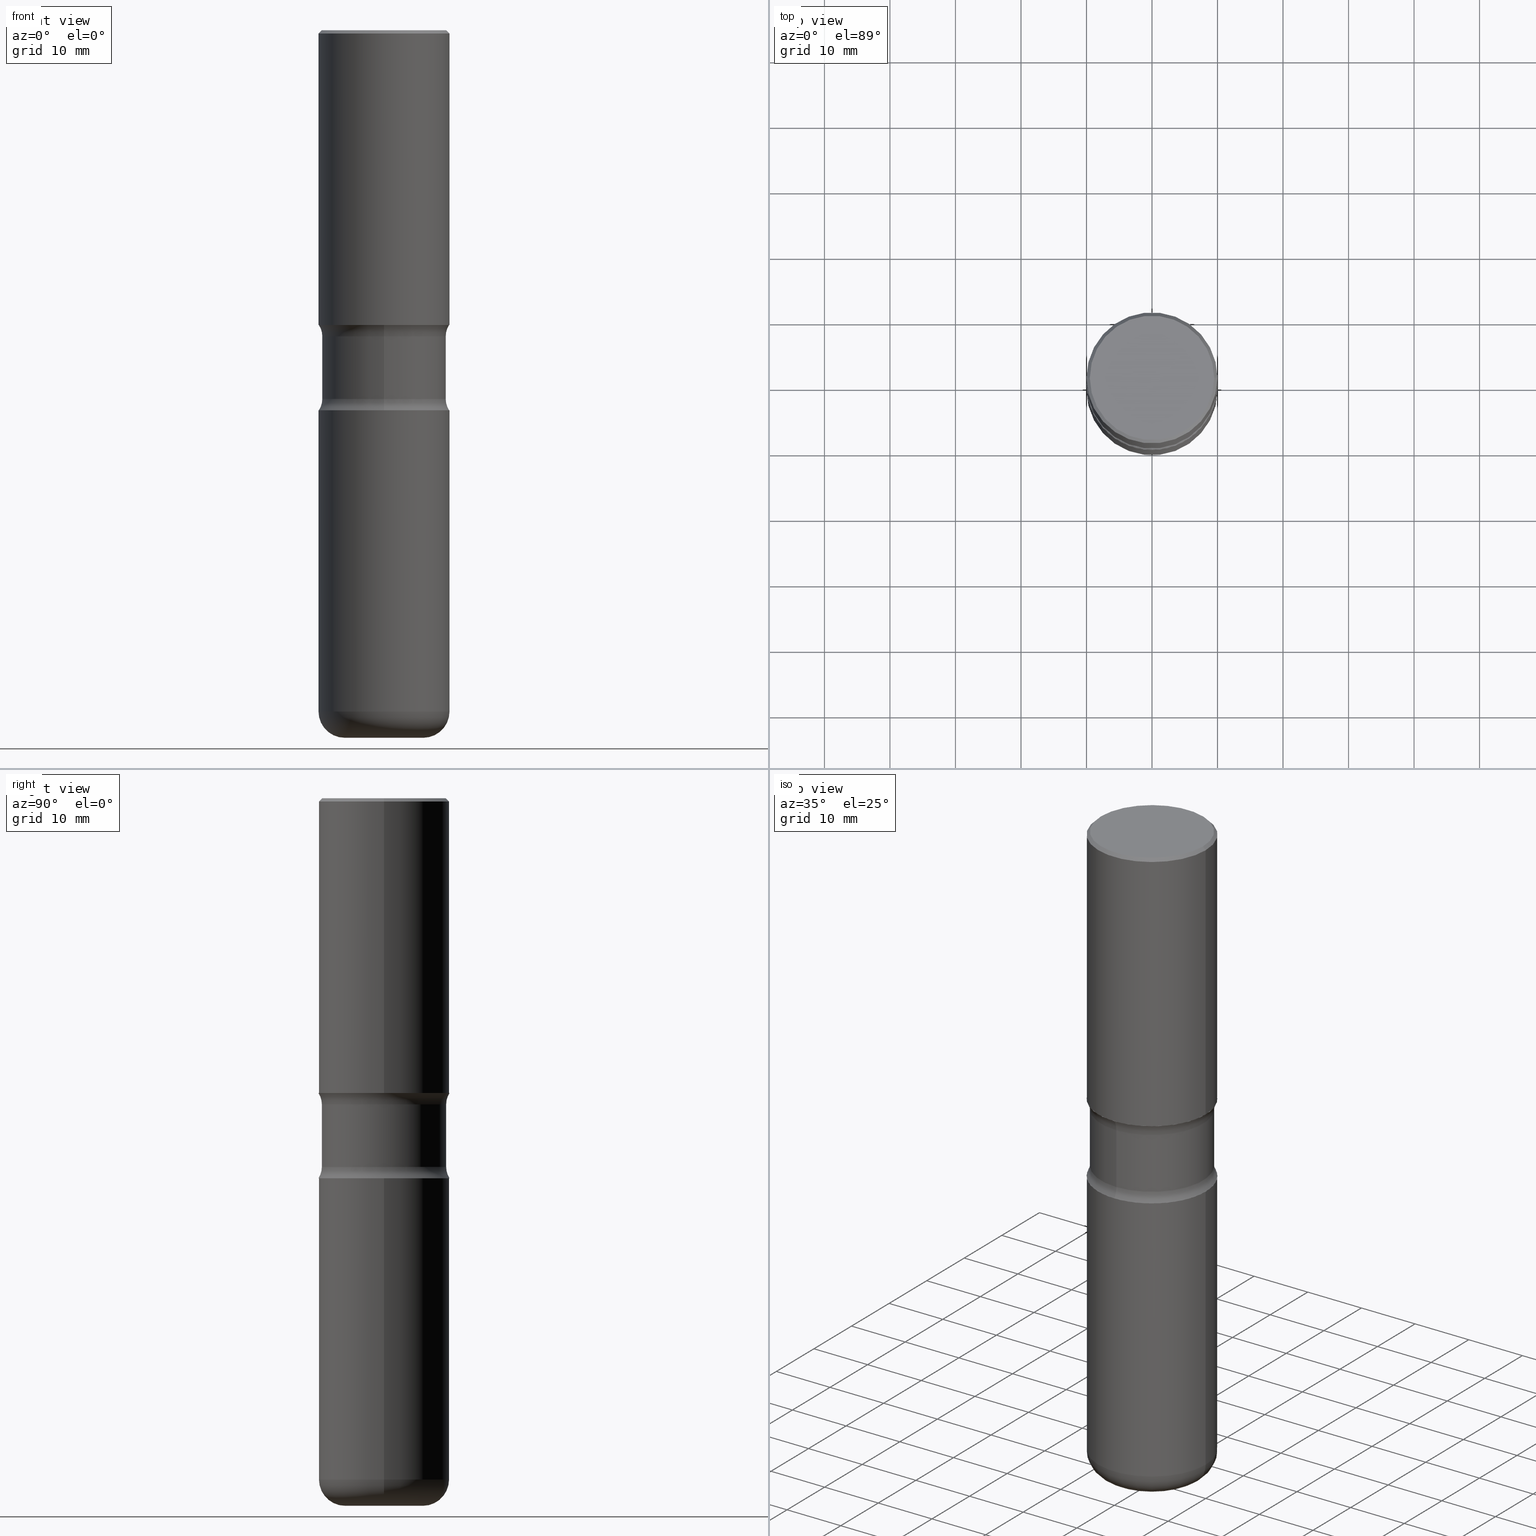
[diagram: canonical four-view strip — front | top / right | iso, engineering-drawing reading convention]
A machine part, canonical four-view strip (front | top / right | iso — engineering-drawing reading convention). The complete STEP part file that produces these views, byte-faithful:
ISO-10303-21;
HEADER;
FILE_DESCRIPTION (( 'STEP AP203' ),
    '1' );
FILE_NAME ('44758.STEP',
    '2024-03-02T02:52:09',
    ( '' ),
    ( '' ),
    'SwSTEP 2.0',
    'SolidWorks 2023',
    '' );
FILE_SCHEMA (( 'CONFIG_CONTROL_DESIGN' ));
ENDSEC;

DATA;
#1 = APPROVAL_DATE_TIME ( #304, #229 ) ;
#2 = DIRECTION ( 'NONE',  ( 2.419116809720808422E-29, -3.529218897642557802E-15, -1.000000000000000000 ) ) ;
#3 = ORIENTED_EDGE ( 'NONE', *, *, #72, .F. ) ;
#4 = VECTOR ( 'NONE', #164, 39.37007874015748143 ) ;
#5 = CIRCLE ( 'NONE', #458, 0.2357000000000006312 ) ;
#6 = APPROVAL_STATUS ( 'not_yet_approved' ) ;
#7 = AXIS2_PLACEMENT_3D ( 'NONE', #234, #360, #533 ) ;
#8 = CARTESIAN_POINT ( 'NONE',  ( -2.700978061722598399E-15, -0.3937000000000082656, -2.283499999999999641 ) ) ;
#9 = ORIENTED_EDGE ( 'NONE', *, *, #22, .T. ) ;
#10 = FACE_OUTER_BOUND ( 'NONE', #152, .T. ) ;
#11 = ORIENTED_EDGE ( 'NONE', *, *, #40, .F. ) ;
#12 = CARTESIAN_POINT ( 'NONE',  ( 5.584228018923761589E-29, -7.972797637248326287E-15, -2.283500000000000973 ) ) ;
#13 = ORIENTED_EDGE ( 'NONE', *, *, #537, .F. ) ;
#14 = CLOSED_SHELL ( 'NONE', ( #369, #184, #440, #95, #215, #281, #301, #132 ) ) ;
#15 = LINE ( 'NONE', #68, #155 ) ;
#16 = AXIS2_PLACEMENT_3D ( 'NONE', #283, #316, #116 ) ;
#17 = MANIFOLD_SOLID_BREP ( 'Body-Move/Copy2[4]', #14 ) ;
#18 = EDGE_LOOP ( 'NONE', ( #499, #364, #42, #3 ) ) ;
#19 = APPLICATION_CONTEXT ( 'configuration controlled 3d designs of mechanical parts and assemblies' ) ;
#20 = DIRECTION ( 'NONE',  ( 2.419116809720808142E-29, -3.529218897642557802E-15, -1.000000000000000000 ) ) ;
#21 = CYLINDRICAL_SURFACE ( 'NONE', #187, 0.3937000000000003830 ) ;
#22 = EDGE_CURVE ( 'NONE', #534, #146, #348, .T. ) ;
#23 = DESIGN_CONTEXT ( 'detailed design', #500, 'design' ) ;
#24 = PERSON ( 'UNSPECIFIED', 'UNSPECIFIED', 'UNSPECIFIED', ('UNSPECIFIED'), ('UNSPECIFIED'), ('UNSPECIFIED') ) ;
#25 = VERTEX_POINT ( 'NONE', #414 ) ;
#26 = DIRECTION ( 'NONE',  ( 1.000000000000000000, -6.982962677686269077E-15, 4.883557194083114022E-29 ) ) ;
#27 = CIRCLE ( 'NONE', #288, 0.3734999999999999432 ) ;
#28 = DIRECTION ( 'NONE',  ( 6.982962677686264344E-15, 1.000000000000000000, -3.657092360996336845E-15 ) ) ;
#29 = EDGE_CURVE ( 'NONE', #488, #277, #87, .T. ) ;
#30 = CARTESIAN_POINT ( 'NONE',  ( 5.584228018923761589E-29, -7.972797637248326287E-15, -2.283500000000000973 ) ) ;
#31 = ORIENTED_EDGE ( 'NONE', *, *, #295, .T. ) ;
#32 = APPLICATION_PROTOCOL_DEFINITION ( 'international standard', 'config_control_design', 1994, #500 ) ;
#33 = CARTESIAN_POINT ( 'NONE',  ( 0.000000000000000000, 0.000000000000000000, 0.000000000000000000 ) ) ;
#34 = CALENDAR_DATE ( 2024, 1, 3 ) ;
#35 = DIRECTION ( 'NONE',  ( 2.419116809720808142E-29, -3.529218897642557802E-15, -1.000000000000000000 ) ) ;
#36 = AXIS2_PLACEMENT_3D ( 'NONE', #334, #251, #377 ) ;
#37 = CIRCLE ( 'NONE', #333, 0.2357000000000006312 ) ;
#38 = DIRECTION ( 'NONE',  ( 6.982962677686264344E-15, 1.000000000000000000, -2.925673888797069318E-15 ) ) ;
#39 = EDGE_LOOP ( 'NONE', ( #485, #338, #9, #149 ) ) ;
#40 = EDGE_CURVE ( 'NONE', #238, #55, #117, .T. ) ;
#41 = DIRECTION ( 'NONE',  ( 1.000000000000000000, -6.982962677686268288E-15, 0.000000000000000000 ) ) ;
#42 = ORIENTED_EDGE ( 'NONE', *, *, #22, .F. ) ;
#43 = CC_DESIGN_PERSON_AND_ORGANIZATION_ASSIGNMENT ( #309, #217, ( #178 ) ) ;
#44 = DIRECTION ( 'NONE',  ( 6.982962677686265922E-15, 1.000000000000000000, -3.529218897642557802E-15 ) ) ;
#45 = AXIS2_PLACEMENT_3D ( 'NONE', #502, #199, #493 ) ;
#46 = AXIS2_PLACEMENT_3D ( 'NONE', #12, #524, #171 ) ;
#47 = PERSON_AND_ORGANIZATION_ROLE ( 'design_supplier' ) ;
#48 = EDGE_CURVE ( 'NONE', #61, #315, #457, .T. ) ;
#49 = DIRECTION ( 'NONE',  ( 2.419116809720808142E-29, -3.529218897642557802E-15, -1.000000000000000000 ) ) ;
#50 = CALENDAR_DATE ( 2024, 1, 3 ) ;
#51 = CARTESIAN_POINT ( 'NONE',  ( 2.416356760299254874E-28, 4.867106657481481222E-15, -4.252000000000000668 ) ) ;
#52 = EDGE_LOOP ( 'NONE', ( #11, #429, #273, #405 ) ) ;
#53 = PERSON_AND_ORGANIZATION_ROLE ( 'creator' ) ;
#54 = FACE_OUTER_BOUND ( 'NONE', #331, .T. ) ;
#55 = VERTEX_POINT ( 'NONE', #162 ) ;
#56 = AXIS2_PLACEMENT_3D ( 'NONE', #428, #462, #77 ) ;
#57 = DIRECTION ( 'NONE',  ( -1.000000000000000000, 6.982962677686265922E-15, -4.876176775795935793E-29 ) ) ;
#58 = VERTEX_POINT ( 'NONE', #115 ) ;
#59 = EDGE_CURVE ( 'NONE', #55, #101, #374, .T. ) ;
#60 = CARTESIAN_POINT ( 'NONE',  ( 2.749192406205130154E-15, 0.3936999999999942768, -1.771700000000002051 ) ) ;
#61 = VERTEX_POINT ( 'NONE', #317 ) ;
#62 = DIRECTION ( 'NONE',  ( -6.982962677686266711E-15, -1.000000000000000000, 3.491481338843145583E-15 ) ) ;
#63 = CC_DESIGN_DATE_AND_TIME_ASSIGNMENT ( #140, #137, ( #398 ) ) ;
#64 = ORIENTED_EDGE ( 'NONE', *, *, #269, .T. ) ;
#65 = DIRECTION ( 'NONE',  ( 6.982962677686265922E-15, 1.000000000000000000, -3.469453890861392023E-15 ) ) ;
#66 = CC_DESIGN_APPROVAL ( #404, ( #556 ) ) ;
#67 = ORIENTED_EDGE ( 'NONE', *, *, #141, .T. ) ;
#68 = CARTESIAN_POINT ( 'NONE',  ( -2.562396002167562492E-15, -0.3735000000000148201, -4.251999999999999780 ) ) ;
#69 = ORIENTED_EDGE ( 'NONE', *, *, #295, .F. ) ;
#70 = DIRECTION ( 'NONE',  ( -2.445468806185136877E-29, 3.491481338843145188E-15, 1.000000000000000000 ) ) ;
#71 = DIRECTION ( 'NONE',  ( 2.419116809720808142E-29, -3.529218897642557802E-15, -1.000000000000000000 ) ) ;
#72 = EDGE_CURVE ( 'NONE', #468, #534, #460, .T. ) ;
#73 = DIRECTION ( 'NONE',  ( -2.445468806185136597E-29, 3.491481338843145583E-15, 1.000000000000000000 ) ) ;
#74 = CARTESIAN_POINT ( 'NONE',  ( -3.419958251889054030E-15, -0.4985000000000077147, -2.215368069159900255 ) ) ;
#75 = CARTESIAN_POINT ( 'NONE',  ( 0.3937000000000003830, -2.749192406205085978E-15, 1.919750796630861853E-29 ) ) ;
#76 = APPROVAL_ROLE ( '' ) ;
#77 = DIRECTION ( 'NONE',  ( -1.000000000000000000, 6.982962677686266711E-15, 0.000000000000000000 ) ) ;
#78 = PRODUCT ( '44758', '44758', '', ( #553 ) ) ;
#79 = ADVANCED_FACE ( 'NONE', ( #420 ), #21, .T. ) ;
#80 = CARTESIAN_POINT ( 'NONE',  ( 0.3937000000000002164, -2.770807688499516917E-15, -0.02000000000000013572 ) ) ;
#81 = CIRCLE ( 'NONE', #332, 0.3937000000000004940 ) ;
#82 = AXIS2_PLACEMENT_3D ( 'NONE', #156, #20, #108 ) ;
#83 = CARTESIAN_POINT ( 'NONE',  ( -0.3937000000000004385, -8.336054368548563224E-15, -2.283500000000000973 ) ) ;
#84 = FACE_OUTER_BOUND ( 'NONE', #355, .T. ) ;
#85 = EDGE_CURVE ( 'NONE', #529, #468, #81, .T. ) ;
#86 = CARTESIAN_POINT ( 'NONE',  ( 0.000000000000000000, 0.000000000000000000, 0.000000000000000000 ) ) ;
#87 = CIRCLE ( 'NONE', #492, 0.3734999999999999432 ) ;
#88 =( GEOMETRIC_REPRESENTATION_CONTEXT ( 3 ) GLOBAL_UNCERTAINTY_ASSIGNED_CONTEXT ( ( #386 ) ) GLOBAL_UNIT_ASSIGNED_CONTEXT ( ( #421, #130, #298 ) ) REPRESENTATION_CONTEXT ( 'NONE', 'WORKASPACE' ) );
#89 = DATE_AND_TIME ( #346, #410 ) ;
#90 = ORIENTED_EDGE ( 'NONE', *, *, #158, .F. ) ;
#91 = LINE ( 'NONE', #528, #482 ) ;
#92 = ORIENTED_EDGE ( 'NONE', *, *, #476, .T. ) ;
#93 = CALENDAR_DATE ( 2024, 1, 3 ) ;
#94 = DIRECTION ( 'NONE',  ( -2.445468806185136597E-29, 3.491481338843145583E-15, 1.000000000000000000 ) ) ;
#95 = ADVANCED_FACE ( 'NONE', ( #106 ), #503, .F. ) ;
#96 = VERTEX_POINT ( 'NONE', #133 ) ;
#97 = CONICAL_SURFACE ( 'NONE', #415, 0.3937000000000002164, 0.7853981633974461696 ) ;
#98 = AXIS2_PLACEMENT_3D ( 'NONE', #328, #114, #371 ) ;
#99 = DATE_AND_TIME ( #34, #484 ) ;
#100 = PLANE ( 'NONE',  #339 ) ;
#101 = VERTEX_POINT ( 'NONE', #208 ) ;
#102 = CARTESIAN_POINT ( 'NONE',  ( 5.584228018923761589E-29, -7.972797637248326287E-15, -2.283500000000000973 ) ) ;
#103 = ORIENTED_EDGE ( 'NONE', *, *, #48, .T. ) ;
#104 = ADVANCED_FACE ( 'NONE', ( #292 ), #169, .T. ) ;
#105 = DIRECTION ( 'NONE',  ( 2.419116809720808142E-29, -3.529218897642557802E-15, -1.000000000000000000 ) ) ;
#106 = FACE_OUTER_BOUND ( 'NONE', #209, .T. ) ;
#107 = CIRCLE ( 'NONE', #248, 0.3937000000000004385 ) ;
#108 = DIRECTION ( 'NONE',  ( 6.982962677686265922E-15, 1.000000000000000000, -3.529218897642557802E-15 ) ) ;
#109 = VECTOR ( 'NONE', #2, 39.37007874015748143 ) ;
#110 = CARTESIAN_POINT ( 'NONE',  ( 4.332637083918208108E-29, -6.185857488028402659E-15, -1.771700000000000719 ) ) ;
#111 = APPROVAL ( #121, 'UNSPECIFIED' ) ;
#112 = DIRECTION ( 'NONE',  ( 2.419116809720808142E-29, -3.529218897642557802E-15, -1.000000000000000000 ) ) ;
#113 = ORIENTED_EDGE ( 'NONE', *, *, #150, .F. ) ;
#114 = DIRECTION ( 'NONE',  ( 2.419116809720808142E-29, -3.529218897642557802E-15, -1.000000000000000000 ) ) ;
#115 = CARTESIAN_POINT ( 'NONE',  ( 0.3937000000000004385, -1.072199004345341266E-14, -2.283500000000000973 ) ) ;
#116 = DIRECTION ( 'NONE',  ( 1.000000000000000000, -6.982962677686269077E-15, 4.883557194083114022E-29 ) ) ;
#117 = CIRCLE ( 'NONE', #45, 0.1579999999999998905 ) ;
#118 = AXIS2_PLACEMENT_3D ( 'NONE', #450, #319, #151 ) ;
#119 = CARTESIAN_POINT ( 'NONE',  ( 1.001174929252194934E-28, -1.429412460122383920E-14, -4.094000000000000306 ) ) ;
#120 = CC_DESIGN_DATE_AND_TIME_ASSIGNMENT ( #89, #389, ( #178 ) ) ;
#121 = APPROVAL_STATUS ( 'not_yet_approved' ) ;
#122 = LINE ( 'NONE', #80, #4 ) ;
#123 = EDGE_CURVE ( 'NONE', #25, #275, #408, .T. ) ;
#124 = FACE_OUTER_BOUND ( 'NONE', #456, .T. ) ;
#125 = VERTEX_POINT ( 'NONE', #299 ) ;
#126 = DIRECTION ( 'NONE',  ( -2.445468806185136597E-29, 3.491481338843145583E-15, 1.000000000000000000 ) ) ;
#127 = AXIS2_PLACEMENT_3D ( 'NONE', #342, #382, #554 ) ;
#128 = AXIS2_PLACEMENT_3D ( 'NONE', #530, #403, #185 ) ;
#129 = EDGE_LOOP ( 'NONE', ( #478, #220, #69, #177 ) ) ;
#130 =( NAMED_UNIT ( * ) PLANE_ANGLE_UNIT ( ) SI_UNIT ( $, .RADIAN. ) );
#131 = CARTESIAN_POINT ( 'NONE',  ( -0.2357000000000006312, -1.233387363755540793E-14, -4.251999999999999780 ) ) ;
#132 = ADVANCED_FACE ( 'NONE', ( #166 ), #300, .T. ) ;
#133 = CARTESIAN_POINT ( 'NONE',  ( 2.749192406205141198E-15, 0.3936999999999923894, -2.283500000000002306 ) ) ;
#134 = CYLINDRICAL_SURFACE ( 'NONE', #340, 0.3734999999999999432 ) ;
#135 = AXIS2_PLACEMENT_3D ( 'NONE', #119, #542, #286 ) ;
#136 = AXIS2_PLACEMENT_3D ( 'NONE', #538, #105, #413 ) ;
#137 = DATE_TIME_ROLE ( 'classification_date' ) ;
#138 = CARTESIAN_POINT ( 'NONE',  ( 4.346124035708651749E-29, -6.166543405434863904E-15, -1.771700000000000719 ) ) ;
#139 = ORIENTED_EDGE ( 'NONE', *, *, #560, .F. ) ;
#140 = DATE_AND_TIME ( #50, #280 ) ;
#141 = EDGE_CURVE ( 'NONE', #143, #58, #107, .T. ) ;
#142 = CARTESIAN_POINT ( 'NONE',  ( 0.2357000000000006312, -1.649166295589171151E-14, -4.251999999999999780 ) ) ;
#143 = VERTEX_POINT ( 'NONE', #83 ) ;
#144 = COORDINATED_UNIVERSAL_TIME_OFFSET ( 5, 0, .BEHIND. ) ;
#145 = FACE_OUTER_BOUND ( 'NONE', #160, .T. ) ;
#146 = VERTEX_POINT ( 'NONE', #337 ) ;
#147 = AXIS2_PLACEMENT_3D ( 'NONE', #302, #218, #344 ) ;
#148 = DIRECTION ( 'NONE',  ( -1.000000000000000000, 6.982962677686266711E-15, 0.000000000000000000 ) ) ;
#149 = ORIENTED_EDGE ( 'NONE', *, *, #167, .F. ) ;
#150 = EDGE_CURVE ( 'NONE', #101, #55, #472, .T. ) ;
#151 = DIRECTION ( 'NONE',  ( 1.000000000000000000, -6.982962677686266711E-15, 4.876212485538973437E-29 ) ) ;
#152 = EDGE_LOOP ( 'NONE', ( #233, #361 ) ) ;
#153 = DIRECTION ( 'NONE',  ( -2.438088387897960049E-29, 3.491481338843145188E-15, 1.000000000000000000 ) ) ;
#154 = DIRECTION ( 'NONE',  ( -2.445468806185136597E-29, 3.491481338843145583E-15, 1.000000000000000000 ) ) ;
#155 = VECTOR ( 'NONE', #189, 39.37007874015748143 ) ;
#156 = CARTESIAN_POINT ( 'NONE',  ( 4.499251595492833965E-29, -6.423738853135961854E-15, -1.839831930840100105 ) ) ;
#157 = EDGE_LOOP ( 'NONE', ( #525, #350, #306, #509 ) ) ;
#158 = EDGE_CURVE ( 'NONE', #25, #61, #491, .T. ) ;
#159 = CARTESIAN_POINT ( 'NONE',  ( 4.332637083918208108E-29, -6.185857488028402659E-15, -1.771700000000000719 ) ) ;
#160 = EDGE_LOOP ( 'NONE', ( #393, #242, #329, #194 ) ) ;
#161 = DIRECTION ( 'NONE',  ( 1.000000000000000000, -6.982962677686264344E-15, 0.000000000000000000 ) ) ;
#162 = CARTESIAN_POINT ( 'NONE',  ( -0.3937000000000005495, -1.149671785053631889E-14, -4.094000000000000306 ) ) ;
#163 = APPROVAL_PERSON_ORGANIZATION ( #258, #404, #313 ) ;
#164 = DIRECTION ( 'NONE',  ( 0.7071067811865460184, -7.319954787623251312E-15, -0.7071067811865490160 ) ) ;
#165 = EDGE_CURVE ( 'NONE', #529, #146, #380, .T. ) ;
#166 = FACE_OUTER_BOUND ( 'NONE', #157, .T. ) ;
#167 = EDGE_CURVE ( 'NONE', #125, #146, #335, .T. ) ;
#168 = FACE_OUTER_BOUND ( 'NONE', #129, .T. ) ;
#169 = CYLINDRICAL_SURFACE ( 'NONE', #256, 0.3937000000000004940 ) ;
#170 = FACE_OUTER_BOUND ( 'NONE', #39, .T. ) ;
#171 = DIRECTION ( 'NONE',  ( 1.000000000000000000, -6.982962677686268288E-15, 0.000000000000000000 ) ) ;
#172 = ORIENTED_EDGE ( 'NONE', *, *, #513, .T. ) ;
#173 = EDGE_CURVE ( 'NONE', #402, #534, #122, .T. ) ;
#174 = AXIS2_PLACEMENT_3D ( 'NONE', #232, #112, #191 ) ;
#175 = APPROVAL_DATE_TIME ( #99, #111 ) ;
#176 = PLANE ( 'NONE',  #505 ) ;
#177 = ORIENTED_EDGE ( 'NONE', *, *, #269, .F. ) ;
#178 = PRODUCT_DEFINITION ( 'UNKNOWN', '', #556, #23 ) ;
#179 = PERSON_AND_ORGANIZATION ( #24, #443 ) ;
#180 = DIRECTION ( 'NONE',  ( 2.438088387897960049E-29, -3.491481338843145188E-15, -1.000000000000000000 ) ) ;
#181 = ADVANCED_BREP_SHAPE_REPRESENTATION ( '44758', ( #383, #388, #17, #548 ), #88 ) ;
#182 = ORIENTED_EDGE ( 'NONE', *, *, #40, .T. ) ;
#183 = CALENDAR_DATE ( 2024, 1, 3 ) ;
#184 = ADVANCED_FACE ( 'NONE', ( #124 ), #395, .F. ) ;
#185 = DIRECTION ( 'NONE',  ( 1.000000000000000000, -6.982962677686266711E-15, 4.876212485538973437E-29 ) ) ;
#186 = ORIENTED_EDGE ( 'NONE', *, *, #59, .T. ) ;
#187 = AXIS2_PLACEMENT_3D ( 'NONE', #33, #154, #203 ) ;
#188 = CIRCLE ( 'NONE', #46, 0.3937000000000004385 ) ;
#189 = DIRECTION ( 'NONE',  ( 2.419116809720808422E-29, -3.529218897642557802E-15, -1.000000000000000000 ) ) ;
#190 = ORIENTED_EDGE ( 'NONE', *, *, #311, .F. ) ;
#191 = DIRECTION ( 'NONE',  ( 6.982962677686265922E-15, 1.000000000000000000, -3.469453890861392023E-15 ) ) ;
#192 = EDGE_LOOP ( 'NONE', ( #381, #182, #113, #308 ) ) ;
#193 =( LENGTH_UNIT ( ) NAMED_UNIT ( * ) SI_UNIT ( $, .METRE. ) );
#194 = ORIENTED_EDGE ( 'NONE', *, *, #362, .F. ) ;
#195 = ADVANCED_FACE ( 'NONE', ( #469 ), #196, .T. ) ;
#196 = CONICAL_SURFACE ( 'NONE', #56, 0.3937000000000002164, 0.7853981633974461696 ) ;
#197 = AXIS2_PLACEMENT_3D ( 'NONE', #159, #153, #535 ) ;
#198 = CARTESIAN_POINT ( 'NONE',  ( -0.3937000000000005495, -3.304368067151132125E-16, -1.771700000000000719 ) ) ;
#199 = DIRECTION ( 'NONE',  ( 7.105427357601001859E-15, 1.000000000000000000, -3.491481338843145583E-15 ) ) ;
#200 = FACE_OUTER_BOUND ( 'NONE', #446, .T. ) ;
#201 = ORIENTED_EDGE ( 'NONE', *, *, #343, .F. ) ;
#202 = PERSON_AND_ORGANIZATION ( #24, #443 ) ;
#203 = DIRECTION ( 'NONE',  ( 1.000000000000000000, -6.982962677686266711E-15, 4.876176775795935793E-29 ) ) ;
#204 = AXIS2_PLACEMENT_3D ( 'NONE', #282, #545, #320 ) ;
#205 = CIRCLE ( 'NONE', #512, 0.3937000000000004940 ) ;
#206 = DIRECTION ( 'NONE',  ( 6.860497997771531562E-15, 1.000000000000000000, 0.000000000000000000 ) ) ;
#207 = CYLINDRICAL_SURFACE ( 'NONE', #267, 0.3937000000000004940 ) ;
#208 = CARTESIAN_POINT ( 'NONE',  ( 0.3937000000000005495, -1.704331700742892557E-14, -4.094000000000000306 ) ) ;
#209 = EDGE_LOOP ( 'NONE', ( #497, #470, #103, #268 ) ) ;
#210 = EDGE_CURVE ( 'NONE', #96, #277, #293, .T. ) ;
#211 = DIRECTION ( 'NONE',  ( -2.445468806185136597E-29, 3.491481338843145583E-15, 1.000000000000000000 ) ) ;
#212 = CIRCLE ( 'NONE', #128, 0.3737000000000001432 ) ;
#213 = DIRECTION ( 'NONE',  ( 6.982962677686265922E-15, 1.000000000000000000, -3.529218897642557802E-15 ) ) ;
#214 = FACE_OUTER_BOUND ( 'NONE', #261, .T. ) ;
#215 = ADVANCED_FACE ( 'NONE', ( #426 ), #508, .F. ) ;
#216 = ORIENTED_EDGE ( 'NONE', *, *, #85, .T. ) ;
#217 = PERSON_AND_ORGANIZATION_ROLE ( 'creator' ) ;
#218 = DIRECTION ( 'NONE',  ( -2.419116809720807581E-29, 3.529218897642557802E-15, 1.000000000000000000 ) ) ;
#219 = AXIS2_PLACEMENT_3D ( 'NONE', #510, #35, #44 ) ;
#220 = ORIENTED_EDGE ( 'NONE', *, *, #447, .T. ) ;
#221 = AXIS2_PLACEMENT_3D ( 'NONE', #74, #455, #543 ) ;
#222 = CC_DESIGN_PERSON_AND_ORGANIZATION_ASSIGNMENT ( #254, #53, ( #556 ) ) ;
#223 = DIRECTION ( 'NONE',  ( 2.445468806185136597E-29, -3.491481338843145583E-15, -1.000000000000000000 ) ) ;
#224 = ORIENTED_EDGE ( 'NONE', *, *, #141, .F. ) ;
#225 = DIRECTION ( 'NONE',  ( 1.000000000000000000, -6.982962677686269866E-15, 0.000000000000000000 ) ) ;
#226 = ORIENTED_EDGE ( 'NONE', *, *, #85, .F. ) ;
#227 = DIRECTION ( 'NONE',  ( 1.000000000000000000, -6.982962677686263555E-15, 0.000000000000000000 ) ) ;
#228 = ORIENTED_EDGE ( 'NONE', *, *, #560, .T. ) ;
#229 = APPROVAL ( #433, 'UNSPECIFIED' ) ;
#230 = AXIS2_PLACEMENT_3D ( 'NONE', #557, #471, #507 ) ;
#231 = CC_DESIGN_APPROVAL ( #229, ( #398 ) ) ;
#232 = CARTESIAN_POINT ( 'NONE',  ( 5.584228018923761589E-29, -7.972797637248326287E-15, -2.283500000000000973 ) ) ;
#233 = ORIENTED_EDGE ( 'NONE', *, *, #336, .T. ) ;
#234 = CARTESIAN_POINT ( 'NONE',  ( 4.890937612370306439E-31, -6.982962677686338448E-17, -0.02000000000000013572 ) ) ;
#235 = ORIENTED_EDGE ( 'NONE', *, *, #48, .F. ) ;
#236 = ADVANCED_FACE ( 'NONE', ( #168 ), #207, .T. ) ;
#237 = DIRECTION ( 'NONE',  ( -2.445468806185136597E-29, 3.491481338843145583E-15, 1.000000000000000000 ) ) ;
#238 = VERTEX_POINT ( 'NONE', #131 ) ;
#239 = AXIS2_PLACEMENT_3D ( 'NONE', #431, #253, #38 ) ;
#240 = CC_DESIGN_APPROVAL ( #111, ( #178 ) ) ;
#241 = LINE ( 'NONE', #459, #539 ) ;
#242 = ORIENTED_EDGE ( 'NONE', *, *, #552, .T. ) ;
#243 = ADVANCED_FACE ( 'NONE', ( #84 ), #515, .F. ) ;
#244 = DIRECTION ( 'NONE',  ( 0.000000000000000000, 0.000000000000000000, 1.000000000000000000 ) ) ;
#245 = DIRECTION ( 'NONE',  ( -2.445468806185136877E-29, 3.491481338843145188E-15, 1.000000000000000000 ) ) ;
#246 = COORDINATED_UNIVERSAL_TIME_OFFSET ( 5, 0, .BEHIND. ) ;
#247 = CARTESIAN_POINT ( 'NONE',  ( 3.481006894826658371E-15, 0.4984999999999922826, -2.215368069159903364 ) ) ;
#248 = AXIS2_PLACEMENT_3D ( 'NONE', #255, #211, #41 ) ;
#249 = AXIS2_PLACEMENT_3D ( 'NONE', #260, #483, #314 ) ;
#250 = DIRECTION ( 'NONE',  ( -1.000000000000000000, 6.982962677686265922E-15, -4.883557194083112901E-29 ) ) ;
#251 = DIRECTION ( 'NONE',  ( -2.445468806185136597E-29, 3.491481338843145583E-15, 1.000000000000000000 ) ) ;
#252 = ADVANCED_FACE ( 'NONE', ( #170 ), #97, .T. ) ;
#253 = DIRECTION ( 'NONE',  ( 2.419116809720808142E-29, -3.529218897642557802E-15, -1.000000000000000000 ) ) ;
#254 = PERSON_AND_ORGANIZATION ( #24, #443 ) ;
#255 = CARTESIAN_POINT ( 'NONE',  ( 5.584228018923761589E-29, -7.972797637248326287E-15, -2.283500000000000973 ) ) ;
#256 = AXIS2_PLACEMENT_3D ( 'NONE', #86, #126, #387 ) ;
#257 = CIRCLE ( 'NONE', #98, 0.3734999999999999432 ) ;
#258 = PERSON_AND_ORGANIZATION ( #24, #443 ) ;
#259 = ADVANCED_FACE ( 'NONE', ( #54 ), #100, .T. ) ;
#260 = CARTESIAN_POINT ( 'NONE',  ( 5.417613507349136293E-29, -7.734916272140768670E-15, -2.215368069159902031 ) ) ;
#261 = EDGE_LOOP ( 'NONE', ( #92, #172 ) ) ;
#262 = PERSON_AND_ORGANIZATION ( #24, #443 ) ;
#263 = LINE ( 'NONE', #401, #109 ) ;
#264 = ORIENTED_EDGE ( 'NONE', *, *, #210, .F. ) ;
#265 = PRODUCT_RELATED_PRODUCT_CATEGORY ( 'detail', '', ( #78 ) ) ;
#266 = DIRECTION ( 'NONE',  ( 6.982962677686265922E-15, 1.000000000000000000, -3.469453890861391629E-15 ) ) ;
#267 = AXIS2_PLACEMENT_3D ( 'NONE', #550, #341, #514 ) ;
#268 = ORIENTED_EDGE ( 'NONE', *, *, #343, .T. ) ;
#269 = EDGE_CURVE ( 'NONE', #101, #58, #91, .T. ) ;
#270 = CIRCLE ( 'NONE', #221, 0.1249999999999999584 ) ;
#271 = SHAPE_DEFINITION_REPRESENTATION ( #379, #181 ) ;
#272 = CARTESIAN_POINT ( 'NONE',  ( 2.608136560115873849E-15, 0.3734999999999922271, -2.215368069159903364 ) ) ;
#273 = ORIENTED_EDGE ( 'NONE', *, *, #384, .T. ) ;
#274 = CARTESIAN_POINT ( 'NONE',  ( 5.419408919749742446E-29, -7.732345139394574102E-15, -2.215368069159902031 ) ) ;
#275 = VERTEX_POINT ( 'NONE', #474 ) ;
#276 = CARTESIAN_POINT ( 'NONE',  ( -2.631687031945105097E-15, -0.3735000000000076592, -2.215368069159900699 ) ) ;
#277 = VERTEX_POINT ( 'NONE', #272 ) ;
#278 = VECTOR ( 'NONE', #245, 39.37007874015748143 ) ;
#279 = AXIS2_PLACEMENT_3D ( 'NONE', #366, #73, #26 ) ;
#280 = LOCAL_TIME ( 21, 52, 9.000000000000000000, #481 ) ;
#281 = ADVANCED_FACE ( 'NONE', ( #214 ), #559, .F. ) ;
#282 = CARTESIAN_POINT ( 'NONE',  ( 4.890937612370306439E-31, -6.982962677686338448E-17, -0.02000000000000013572 ) ) ;
#283 = CARTESIAN_POINT ( 'NONE',  ( 1.001174929252194934E-28, -1.429412460122383920E-14, -4.094000000000000306 ) ) ;
#284 = ORIENTED_EDGE ( 'NONE', *, *, #165, .F. ) ;
#285 = FACE_OUTER_BOUND ( 'NONE', #192, .T. ) ;
#286 = DIRECTION ( 'NONE',  ( 1.000000000000000000, -6.982962677686266711E-15, 0.000000000000000000 ) ) ;
#287 = CLOSED_SHELL ( 'NONE', ( #544, #252, #195, #400, #417, #79 ) ) ;
#288 = AXIS2_PLACEMENT_3D ( 'NONE', #274, #347, #521 ) ;
#289 = CYLINDRICAL_SURFACE ( 'NONE', #303, 0.3937000000000003830 ) ;
#290 = ORIENTED_EDGE ( 'NONE', *, *, #378, .T. ) ;
#291 = DIRECTION ( 'NONE',  ( -0.7071067811865460184, 2.468850131082241283E-15, -0.7071067811865490160 ) ) ;
#292 = FACE_OUTER_BOUND ( 'NONE', #412, .T. ) ;
#293 = CIRCLE ( 'NONE', #368, 0.1249999999999999584 ) ;
#294 = CARTESIAN_POINT ( 'NONE',  ( 0.000000000000000000, 0.000000000000000000, 0.000000000000000000 ) ) ;
#295 = EDGE_CURVE ( 'NONE', #58, #143, #188, .T. ) ;
#296 = LOCAL_TIME ( 21, 52, 9.000000000000000000, #144 ) ;
#297 = CARTESIAN_POINT ( 'NONE',  ( -3.419958251889061525E-15, -0.4985000000000062159, -1.839831930840098329 ) ) ;
#298 =( NAMED_UNIT ( * ) SI_UNIT ( $, .STERADIAN. ) SOLID_ANGLE_UNIT ( ) );
#299 = CARTESIAN_POINT ( 'NONE',  ( -0.3737000000000001432, 2.644447966039790241E-15, 8.537024980182435319E-18 ) ) ;
#300 = CYLINDRICAL_SURFACE ( 'NONE', #239, 0.3734999999999999432 ) ;
#301 = ADVANCED_FACE ( 'NONE', ( #445 ), #466, .F. ) ;
#302 = CARTESIAN_POINT ( 'NONE',  ( 5.584228018923761589E-29, -7.972797637248326287E-15, -2.283500000000000973 ) ) ;
#303 = AXIS2_PLACEMENT_3D ( 'NONE', #452, #237, #407 ) ;
#304 = DATE_AND_TIME ( #93, #296 ) ;
#305 = CARTESIAN_POINT ( 'NONE',  ( 4.890937612370306439E-31, -6.982962677686338448E-17, -0.02000000000000013572 ) ) ;
#306 = ORIENTED_EDGE ( 'NONE', *, *, #362, .T. ) ;
#307 = DIRECTION ( 'NONE',  ( 6.982962677686264344E-15, 1.000000000000000000, -2.925673888797069318E-15 ) ) ;
#308 = ORIENTED_EDGE ( 'NONE', *, *, #384, .F. ) ;
#309 = PERSON_AND_ORGANIZATION ( #24, #443 ) ;
#310 = DIRECTION ( 'NONE',  ( -1.000000000000000000, 6.982962677686265922E-15, -4.876176775795935793E-29 ) ) ;
#311 = EDGE_CURVE ( 'NONE', #238, #312, #5, .T. ) ;
#312 = VERTEX_POINT ( 'NONE', #142 ) ;
#313 = APPROVAL_ROLE ( '' ) ;
#314 = DIRECTION ( 'NONE',  ( 6.982962677686265922E-15, 1.000000000000000000, -3.529218897642557802E-15 ) ) ;
#315 = VERTEX_POINT ( 'NONE', #60 ) ;
#316 = DIRECTION ( 'NONE',  ( -2.445468806185136597E-29, 3.491481338843145583E-15, 1.000000000000000000 ) ) ;
#317 = CARTESIAN_POINT ( 'NONE',  ( 2.608136560115864777E-15, 0.3734999999999935039, -1.839831930840101437 ) ) ;
#318 = EDGE_CURVE ( 'NONE', #468, #529, #205, .T. ) ;
#319 = DIRECTION ( 'NONE',  ( -2.445468806185136597E-29, 3.491481338843145583E-15, 1.000000000000000000 ) ) ;
#320 = DIRECTION ( 'NONE',  ( 1.000000000000000000, -6.982962677686266711E-15, 0.000000000000000000 ) ) ;
#321 = CLOSED_SHELL ( 'NONE', ( #236, #504, #259, #430, #104, #243 ) ) ;
#322 = CIRCLE ( 'NONE', #385, 0.1579999999999998905 ) ;
#323 = APPROVAL_PERSON_ORGANIZATION ( #202, #111, #76 ) ;
#324 = CC_DESIGN_SECURITY_CLASSIFICATION ( #398, ( #556 ) ) ;
#325 = FACE_OUTER_BOUND ( 'NONE', #427, .T. ) ;
#326 = EDGE_LOOP ( 'NONE', ( #284, #216, #438, #139 ) ) ;
#327 = DIMENSIONAL_EXPONENTS ( 1.000000000000000000, 0.000000000000000000, 0.000000000000000000, 0.000000000000000000, 0.000000000000000000, 0.000000000000000000, 0.000000000000000000 ) ;
#328 = CARTESIAN_POINT ( 'NONE',  ( 4.510943134882670892E-29, -6.406995903288618457E-15, -1.839831930840100105 ) ) ;
#329 = ORIENTED_EDGE ( 'NONE', *, *, #378, .F. ) ;
#330 = CARTESIAN_POINT ( 'NONE',  ( 0.3937000000000002164, -2.770807688499516917E-15, -0.02000000000000013572 ) ) ;
#331 = EDGE_LOOP ( 'NONE', ( #13, #190 ) ) ;
#332 = AXIS2_PLACEMENT_3D ( 'NONE', #110, #373, #490 ) ;
#333 = AXIS2_PLACEMENT_3D ( 'NONE', #501, #453, #161 ) ;
#334 = CARTESIAN_POINT ( 'NONE',  ( 1.001174929252194934E-28, -1.429412460122383920E-14, -4.094000000000000306 ) ) ;
#335 = LINE ( 'NONE', #435, #424 ) ;
#336 = EDGE_CURVE ( 'NONE', #125, #402, #212, .T. ) ;
#337 = CARTESIAN_POINT ( 'NONE',  ( -0.3937000000000002164, 2.679362779428221496E-15, -0.02000000000000013572 ) ) ;
#338 = ORIENTED_EDGE ( 'NONE', *, *, #173, .T. ) ;
#339 = AXIS2_PLACEMENT_3D ( 'NONE', #51, #354, #442 ) ;
#340 = AXIS2_PLACEMENT_3D ( 'NONE', #356, #487, #307 ) ;
#341 = DIRECTION ( 'NONE',  ( -2.445468806185136597E-29, 3.491481338843145583E-15, 1.000000000000000000 ) ) ;
#342 = CARTESIAN_POINT ( 'NONE',  ( 4.332637083918208108E-29, -6.185857488028402659E-15, -1.771700000000000719 ) ) ;
#343 = EDGE_CURVE ( 'NONE', #315, #275, #531, .T. ) ;
#344 = DIRECTION ( 'NONE',  ( -6.982962677686265922E-15, -1.000000000000000000, 3.529218897642557802E-15 ) ) ;
#345 = ORIENTED_EDGE ( 'NONE', *, *, #486, .T. ) ;
#346 = CALENDAR_DATE ( 2024, 1, 3 ) ;
#347 = DIRECTION ( 'NONE',  ( 2.419116809720808142E-29, -3.529218897642557802E-15, -1.000000000000000000 ) ) ;
#348 = CIRCLE ( 'NONE', #204, 0.3937000000000002164 ) ;
#349 = AXIS2_PLACEMENT_3D ( 'NONE', #138, #392, #266 ) ;
#350 = ORIENTED_EDGE ( 'NONE', *, *, #158, .T. ) ;
#351 = SECURITY_CLASSIFICATION_LEVEL ( 'unclassified' ) ;
#352 = CARTESIAN_POINT ( 'NONE',  ( 2.609533152651358592E-15, 0.3737000000000001432, -1.300498063835583800E-15 ) ) ;
#353 = ORIENTED_EDGE ( 'NONE', *, *, #513, .F. ) ;
#354 = DIRECTION ( 'NONE',  ( 2.438088387897960049E-29, -3.491481338843145188E-15, -1.000000000000000000 ) ) ;
#355 = EDGE_LOOP ( 'NONE', ( #31, #67 ) ) ;
#356 = CARTESIAN_POINT ( 'NONE',  ( 1.034625945885917320E-28, -1.492006503725770057E-14, -4.252000000000000668 ) ) ;
#357 = AXIS2_PLACEMENT_3D ( 'NONE', #536, #370, #411 ) ;
#358 = VERTEX_POINT ( 'NONE', #8 ) ;
#359 = CIRCLE ( 'NONE', #118, 0.3737000000000001432 ) ;
#360 = DIRECTION ( 'NONE',  ( -2.445468806185136597E-29, 3.491481338843145583E-15, 1.000000000000000000 ) ) ;
#361 = ORIENTED_EDGE ( 'NONE', *, *, #406, .T. ) ;
#362 = EDGE_CURVE ( 'NONE', #61, #277, #263, .T. ) ;
#363 = FACE_OUTER_BOUND ( 'NONE', #18, .T. ) ;
#364 = ORIENTED_EDGE ( 'NONE', *, *, #165, .T. ) ;
#365 = CC_DESIGN_PERSON_AND_ORGANIZATION_ASSIGNMENT ( #262, #394, ( #398 ) ) ;
#366 = CARTESIAN_POINT ( 'NONE',  ( 1.001174929252194934E-28, -1.429412460122383920E-14, -4.094000000000000306 ) ) ;
#367 = ORIENTED_EDGE ( 'NONE', *, *, #422, .F. ) ;
#368 = AXIS2_PLACEMENT_3D ( 'NONE', #247, #250, #423 ) ;
#369 = ADVANCED_FACE ( 'NONE', ( #145 ), #134, .T. ) ;
#370 = DIRECTION ( 'NONE',  ( -1.000000000000000000, 6.982962677686265922E-15, -4.883557194083112901E-29 ) ) ;
#371 = DIRECTION ( 'NONE',  ( 6.982962677686264344E-15, 1.000000000000000000, -3.657092360996336845E-15 ) ) ;
#372 = ORIENTED_EDGE ( 'NONE', *, *, #447, .F. ) ;
#373 = DIRECTION ( 'NONE',  ( -2.445468806185136597E-29, 3.491481338843145583E-15, 1.000000000000000000 ) ) ;
#374 = CIRCLE ( 'NONE', #135, 0.3937000000000006605 ) ;
#375 = CIRCLE ( 'NONE', #434, 0.3937000000000004385 ) ;
#376 = PERSON_AND_ORGANIZATION_ROLE ( 'design_owner' ) ;
#377 = DIRECTION ( 'NONE',  ( 1.000000000000000000, -6.982962677686266711E-15, 0.000000000000000000 ) ) ;
#378 = EDGE_CURVE ( 'NONE', #277, #488, #27, .T. ) ;
#379 = PRODUCT_DEFINITION_SHAPE ( 'NONE', 'NONE',  #178 ) ;
#380 = LINE ( 'NONE', #390, #465 ) ;
#381 = ORIENTED_EDGE ( 'NONE', *, *, #537, .T. ) ;
#382 = DIRECTION ( 'NONE',  ( 2.419116809720807581E-29, -3.529218897642557802E-15, -1.000000000000000000 ) ) ;
#383 = MANIFOLD_SOLID_BREP ( 'Body-Move/Copy2[1]', #321 ) ;
#384 = EDGE_CURVE ( 'NONE', #312, #101, #322, .T. ) ;
#385 = AXIS2_PLACEMENT_3D ( 'NONE', #477, #62, #227 ) ;
#386 = UNCERTAINTY_MEASURE_WITH_UNIT (LENGTH_MEASURE( 1.000000000000000082E-05 ), #421, 'distance_accuracy_value', 'NONE');
#387 = DIRECTION ( 'NONE',  ( 1.000000000000000000, -6.982962677686266711E-15, 4.876176775795935793E-29 ) ) ;
#388 = MANIFOLD_SOLID_BREP ( 'Body-Move/Copy2[2]', #287 ) ;
#389 = DATE_TIME_ROLE ( 'creation_date' ) ;
#390 = CARTESIAN_POINT ( 'NONE',  ( -0.3937000000000003830, 2.797406750687517153E-15, -1.936584745033358137E-29 ) ) ;
#391 = COORDINATED_UNIVERSAL_TIME_OFFSET ( 5, 0, .BEHIND. ) ;
#392 = DIRECTION ( 'NONE',  ( 2.419116809720808142E-29, -3.529218897642557802E-15, -1.000000000000000000 ) ) ;
#393 = ORIENTED_EDGE ( 'NONE', *, *, #495, .T. ) ;
#394 = PERSON_AND_ORGANIZATION_ROLE ( 'classification_officer' ) ;
#395 = TOROIDAL_SURFACE ( 'NONE', #219, 0.4984999999999999987, 0.1249999999999999584 ) ;
#396 = DIRECTION ( 'NONE',  ( -2.445468806185136597E-29, 3.491481338843145583E-15, 1.000000000000000000 ) ) ;
#397 = TOROIDAL_SURFACE ( 'NONE', #16, 0.2357000000000006035, 0.1579999999999999183 ) ;
#398 = SECURITY_CLASSIFICATION ( '', '', #351 ) ;
#399 = ORIENTED_EDGE ( 'NONE', *, *, #123, .T. ) ;
#400 = ADVANCED_FACE ( 'NONE', ( #10 ), #176, .F. ) ;
#401 = CARTESIAN_POINT ( 'NONE',  ( 2.608136560115922758E-15, 0.3734999999999850107, -4.252000000000002444 ) ) ;
#402 = VERTEX_POINT ( 'NONE', #541 ) ;
#403 = DIRECTION ( 'NONE',  ( -2.445468806185136597E-29, 3.491481338843145583E-15, 1.000000000000000000 ) ) ;
#404 = APPROVAL ( #6, 'UNSPECIFIED' ) ;
#405 = ORIENTED_EDGE ( 'NONE', *, *, #59, .F. ) ;
#406 = EDGE_CURVE ( 'NONE', #402, #125, #359, .T. ) ;
#407 = DIRECTION ( 'NONE',  ( 1.000000000000000000, -6.982962677686266711E-15, 4.876176775795935793E-29 ) ) ;
#408 = CIRCLE ( 'NONE', #517, 0.1249999999999998335 ) ;
#409 = ORIENTED_EDGE ( 'NONE', *, *, #486, .F. ) ;
#410 = LOCAL_TIME ( 21, 52, 9.000000000000000000, #523 ) ;
#411 = DIRECTION ( 'NONE',  ( -6.982962677686264344E-15, -1.000000000000000000, 0.000000000000000000 ) ) ;
#412 = EDGE_LOOP ( 'NONE', ( #372, #186, #64, #224 ) ) ;
#413 = DIRECTION ( 'NONE',  ( 6.982962677686265922E-15, 1.000000000000000000, -3.469453890861391629E-15 ) ) ;
#414 = CARTESIAN_POINT ( 'NONE',  ( -2.631687031945116141E-15, -0.3735000000000063269, -1.839831930840098773 ) ) ;
#415 = AXIS2_PLACEMENT_3D ( 'NONE', #305, #223, #148 ) ;
#416 = CIRCLE ( 'NONE', #174, 0.3937000000000004385 ) ;
#417 = ADVANCED_FACE ( 'NONE', ( #325 ), #418, .F. ) ;
#418 = PLANE ( 'NONE',  #197 ) ;
#419 = DIRECTION ( 'NONE',  ( 1.000000000000000000, 0.000000000000000000, 0.000000000000000000 ) ) ;
#420 = FACE_OUTER_BOUND ( 'NONE', #326, .T. ) ;
#421 =( CONVERSION_BASED_UNIT ( 'INCH', #546 ) LENGTH_UNIT ( ) NAMED_UNIT ( #327 ) );
#422 = EDGE_CURVE ( 'NONE', #275, #315, #494, .T. ) ;
#423 = DIRECTION ( 'NONE',  ( -6.982962677686265133E-15, -1.000000000000000000, 0.000000000000000000 ) ) ;
#424 = VECTOR ( 'NONE', #291, 39.37007874015748143 ) ;
#425 = TOROIDAL_SURFACE ( 'NONE', #279, 0.2357000000000006035, 0.1579999999999999183 ) ;
#426 = FACE_OUTER_BOUND ( 'NONE', #551, .T. ) ;
#427 = EDGE_LOOP ( 'NONE', ( #547, #226 ) ) ;
#428 = CARTESIAN_POINT ( 'NONE',  ( 4.890937612370306439E-31, -6.982962677686338448E-17, -0.02000000000000013572 ) ) ;
#429 = ORIENTED_EDGE ( 'NONE', *, *, #311, .T. ) ;
#430 = ADVANCED_FACE ( 'NONE', ( #489 ), #425, .T. ) ;
#431 = CARTESIAN_POINT ( 'NONE',  ( 1.034625945885917320E-28, -1.492006503725770057E-14, -4.252000000000000668 ) ) ;
#432 = AXIS2_PLACEMENT_3D ( 'NONE', #467, #49, #213 ) ;
#433 = APPROVAL_STATUS ( 'not_yet_approved' ) ;
#434 = AXIS2_PLACEMENT_3D ( 'NONE', #30, #498, #65 ) ;
#435 = CARTESIAN_POINT ( 'NONE',  ( -0.3937000000000002164, 2.679362779428221496E-15, -0.02000000000000013572 ) ) ;
#436 = DATE_AND_TIME ( #183, #473 ) ;
#437 = CARTESIAN_POINT ( 'NONE',  ( 1.039813336389919950E-28, -1.484577865276105326E-14, -4.251999999999999780 ) ) ;
#438 = ORIENTED_EDGE ( 'NONE', *, *, #72, .T. ) ;
#439 = DIRECTION ( 'NONE',  ( 2.438088387897960049E-29, -3.491481338843145188E-15, -1.000000000000000000 ) ) ;
#440 = ADVANCED_FACE ( 'NONE', ( #200 ), #519, .F. ) ;
#441 = ORIENTED_EDGE ( 'NONE', *, *, #29, .T. ) ;
#442 = DIRECTION ( 'NONE',  ( -1.000000000000000000, 6.982962677686265922E-15, -4.876176775795935793E-29 ) ) ;
#443 = ORGANIZATION ( 'UNSPECIFIED', 'UNSPECIFIED', '' ) ;
#444 = ORIENTED_EDGE ( 'NONE', *, *, #173, .F. ) ;
#445 = FACE_OUTER_BOUND ( 'NONE', #449, .T. ) ;
#446 = EDGE_LOOP ( 'NONE', ( #90, #399, #522, #235 ) ) ;
#447 = EDGE_CURVE ( 'NONE', #55, #143, #241, .T. ) ;
#448 = DIRECTION ( 'NONE',  ( -2.445468806185136877E-29, 3.491481338843145188E-15, 1.000000000000000000 ) ) ;
#449 = EDGE_LOOP ( 'NONE', ( #409, #540, #532, #290 ) ) ;
#450 = CARTESIAN_POINT ( 'NONE',  ( -2.087702828670435750E-46, 2.980686340760889474E-32, 8.537024980200807150E-18 ) ) ;
#451 = CIRCLE ( 'NONE', #7, 0.3937000000000002164 ) ;
#452 = CARTESIAN_POINT ( 'NONE',  ( 0.000000000000000000, 0.000000000000000000, 0.000000000000000000 ) ) ;
#453 = DIRECTION ( 'NONE',  ( -2.445468806185136597E-29, 3.491481338843145583E-15, 1.000000000000000000 ) ) ;
#454 = CARTESIAN_POINT ( 'NONE',  ( 5.419408919749742446E-29, -7.732345139394574102E-15, -2.215368069159902031 ) ) ;
#455 = DIRECTION ( 'NONE',  ( 1.000000000000000000, -6.860497997771530774E-15, 4.840336727818230208E-29 ) ) ;
#456 = EDGE_LOOP ( 'NONE', ( #353, #345, #441, #264 ) ) ;
#457 = CIRCLE ( 'NONE', #357, 0.1249999999999998335 ) ;
#458 = AXIS2_PLACEMENT_3D ( 'NONE', #437, #396, #516 ) ;
#459 = CARTESIAN_POINT ( 'NONE',  ( -0.3937000000000004940, 2.797406750687517942E-15, -1.936584745033358697E-29 ) ) ;
#460 = LINE ( 'NONE', #75, #278 ) ;
#461 = PERSON_AND_ORGANIZATION ( #24, #443 ) ;
#462 = DIRECTION ( 'NONE',  ( 2.445468806185136597E-29, -3.491481338843145583E-15, -1.000000000000000000 ) ) ;
#463 = DIRECTION ( 'NONE',  ( 1.000000000000000000, -6.860497997771530774E-15, 4.840336727818230208E-29 ) ) ;
#464 = CC_DESIGN_PERSON_AND_ORGANIZATION_ASSIGNMENT ( #179, #47, ( #556 ) ) ;
#465 = VECTOR ( 'NONE', #549, 39.37007874015748143 ) ;
#466 = TOROIDAL_SURFACE ( 'NONE', #249, 0.4984999999999999987, 0.1249999999999999584 ) ;
#467 = CARTESIAN_POINT ( 'NONE',  ( 4.499251595492833965E-29, -6.423738853135961854E-15, -1.839831930840100105 ) ) ;
#468 = VERTEX_POINT ( 'NONE', #496 ) ;
#469 = FACE_OUTER_BOUND ( 'NONE', #475, .T. ) ;
#470 = ORIENTED_EDGE ( 'NONE', *, *, #495, .F. ) ;
#471 = DIRECTION ( 'NONE',  ( 2.419116809720808142E-29, -3.529218897642557802E-15, -1.000000000000000000 ) ) ;
#472 = CIRCLE ( 'NONE', #36, 0.3937000000000006605 ) ;
#473 = LOCAL_TIME ( 21, 52, 9.000000000000000000, #391 ) ;
#474 = CARTESIAN_POINT ( 'NONE',  ( -2.700978061722611415E-15, -0.3937000000000066557, -1.771699999999999386 ) ) ;
#475 = EDGE_LOOP ( 'NONE', ( #444, #480, #555, #228 ) ) ;
#476 = EDGE_CURVE ( 'NONE', #96, #358, #375, .T. ) ;
#477 = CARTESIAN_POINT ( 'NONE',  ( 0.2357000000000006035, -1.594000890435449430E-14, -4.094000000000000306 ) ) ;
#478 = ORIENTED_EDGE ( 'NONE', *, *, #150, .T. ) ;
#479 = CARTESIAN_POINT ( 'NONE',  ( 4.332637083918208108E-29, -6.185857488028402659E-15, -1.771700000000000719 ) ) ;
#480 = ORIENTED_EDGE ( 'NONE', *, *, #336, .F. ) ;
#481 = COORDINATED_UNIVERSAL_TIME_OFFSET ( 5, 0, .BEHIND. ) ;
#482 = VECTOR ( 'NONE', #448, 39.37007874015748143 ) ;
#483 = DIRECTION ( 'NONE',  ( 2.419116809720808142E-29, -3.529218897642557802E-15, -1.000000000000000000 ) ) ;
#484 = LOCAL_TIME ( 21, 52, 9.000000000000000000, #246 ) ;
#485 = ORIENTED_EDGE ( 'NONE', *, *, #406, .F. ) ;
#486 = EDGE_CURVE ( 'NONE', #358, #488, #270, .T. ) ;
#487 = DIRECTION ( 'NONE',  ( 2.419116809720808142E-29, -3.529218897642557802E-15, -1.000000000000000000 ) ) ;
#488 = VERTEX_POINT ( 'NONE', #276 ) ;
#489 = FACE_OUTER_BOUND ( 'NONE', #52, .T. ) ;
#490 = DIRECTION ( 'NONE',  ( 1.000000000000000000, -6.982962677686269866E-15, 0.000000000000000000 ) ) ;
#491 = CIRCLE ( 'NONE', #230, 0.3734999999999999432 ) ;
#492 = AXIS2_PLACEMENT_3D ( 'NONE', #454, #71, #28 ) ;
#493 = DIRECTION ( 'NONE',  ( -1.000000000000000000, 7.105427357601009747E-15, 0.000000000000000000 ) ) ;
#494 = CIRCLE ( 'NONE', #136, 0.3937000000000004940 ) ;
#495 = EDGE_CURVE ( 'NONE', #61, #25, #257, .T. ) ;
#496 = CARTESIAN_POINT ( 'NONE',  ( 0.3937000000000004940, -8.935049894233490609E-15, -1.771700000000000719 ) ) ;
#497 = ORIENTED_EDGE ( 'NONE', *, *, #123, .F. ) ;
#498 = DIRECTION ( 'NONE',  ( 2.419116809720808142E-29, -3.529218897642557802E-15, -1.000000000000000000 ) ) ;
#499 = ORIENTED_EDGE ( 'NONE', *, *, #318, .T. ) ;
#500 = APPLICATION_CONTEXT ( 'configuration controlled 3d designs of mechanical parts and assemblies' ) ;
#501 = CARTESIAN_POINT ( 'NONE',  ( 1.039813336389919950E-28, -1.484577865276105326E-14, -4.251999999999999780 ) ) ;
#502 = CARTESIAN_POINT ( 'NONE',  ( -0.2357000000000006035, -1.261937537303727818E-14, -4.094000000000000306 ) ) ;
#503 = TOROIDAL_SURFACE ( 'NONE', #432, 0.4984999999999998321, 0.1249999999999998335 ) ;
#504 = ADVANCED_FACE ( 'NONE', ( #285 ), #397, .T. ) ;
#505 = AXIS2_PLACEMENT_3D ( 'NONE', #352, #180, #310 ) ;
#506 = APPLICATION_PROTOCOL_DEFINITION ( 'international standard', 'config_control_design', 1994, #19 ) ;
#507 = DIRECTION ( 'NONE',  ( 6.982962677686264344E-15, 1.000000000000000000, -3.657092360996336845E-15 ) ) ;
#508 = PLANE ( 'NONE',  #127 ) ;
#509 = ORIENTED_EDGE ( 'NONE', *, *, #29, .F. ) ;
#510 = CARTESIAN_POINT ( 'NONE',  ( 5.417613507349136293E-29, -7.734916272140768670E-15, -2.215368069159902031 ) ) ;
#511 = AXIS2_PLACEMENT_3D ( 'NONE', #102, #439, #57 ) ;
#512 = AXIS2_PLACEMENT_3D ( 'NONE', #479, #94, #225 ) ;
#513 = EDGE_CURVE ( 'NONE', #358, #96, #416, .T. ) ;
#514 = DIRECTION ( 'NONE',  ( 1.000000000000000000, -6.982962677686266711E-15, 4.876176775795935793E-29 ) ) ;
#515 = PLANE ( 'NONE',  #511 ) ;
#516 = DIRECTION ( 'NONE',  ( 1.000000000000000000, -6.982962677686264344E-15, 0.000000000000000000 ) ) ;
#517 = AXIS2_PLACEMENT_3D ( 'NONE', #297, #463, #206 ) ;
#518 = APPROVAL_DATE_TIME ( #436, #404 ) ;
#519 = TOROIDAL_SURFACE ( 'NONE', #82, 0.4984999999999998321, 0.1249999999999998335 ) ;
#520 = APPROVAL_PERSON_ORGANIZATION ( #526, #229, #558 ) ;
#521 = DIRECTION ( 'NONE',  ( 6.982962677686264344E-15, 1.000000000000000000, -3.657092360996336845E-15 ) ) ;
#522 = ORIENTED_EDGE ( 'NONE', *, *, #422, .T. ) ;
#523 = COORDINATED_UNIVERSAL_TIME_OFFSET ( 5, 0, .BEHIND. ) ;
#524 = DIRECTION ( 'NONE',  ( -2.445468806185136597E-29, 3.491481338843145583E-15, 1.000000000000000000 ) ) ;
#525 = ORIENTED_EDGE ( 'NONE', *, *, #552, .F. ) ;
#526 = PERSON_AND_ORGANIZATION ( #24, #443 ) ;
#527 = CC_DESIGN_PERSON_AND_ORGANIZATION_ASSIGNMENT ( #461, #376, ( #78 ) ) ;
#528 = CARTESIAN_POINT ( 'NONE',  ( 0.3937000000000004940, -2.749192406205086766E-15, 1.919750796630862414E-29 ) ) ;
#529 = VERTEX_POINT ( 'NONE', #198 ) ;
#530 = CARTESIAN_POINT ( 'NONE',  ( -2.087702828670435750E-46, 2.980686340760889474E-32, 8.537024980200807150E-18 ) ) ;
#531 = CIRCLE ( 'NONE', #349, 0.3937000000000004940 ) ;
#532 = ORIENTED_EDGE ( 'NONE', *, *, #210, .T. ) ;
#533 = DIRECTION ( 'NONE',  ( 1.000000000000000000, -6.982962677686266711E-15, 0.000000000000000000 ) ) ;
#534 = VERTEX_POINT ( 'NONE', #330 ) ;
#535 = DIRECTION ( 'NONE',  ( 1.000000000000000000, -6.982962677686265922E-15, 4.876176775795935793E-29 ) ) ;
#536 = CARTESIAN_POINT ( 'NONE',  ( 3.481006894826647721E-15, 0.4984999999999933928, -1.839831930840101659 ) ) ;
#537 = EDGE_CURVE ( 'NONE', #312, #238, #37, .T. ) ;
#538 = CARTESIAN_POINT ( 'NONE',  ( 4.346124035708651749E-29, -6.166543405434863904E-15, -1.771700000000000719 ) ) ;
#539 = VECTOR ( 'NONE', #70, 39.37007874015748143 ) ;
#540 = ORIENTED_EDGE ( 'NONE', *, *, #476, .F. ) ;
#541 = CARTESIAN_POINT ( 'NONE',  ( 0.3737000000000001432, -2.667287895133369937E-15, 8.537024980219259100E-18 ) ) ;
#542 = DIRECTION ( 'NONE',  ( -2.445468806185136597E-29, 3.491481338843145583E-15, 1.000000000000000000 ) ) ;
#543 = DIRECTION ( 'NONE',  ( 6.860497997771532351E-15, 1.000000000000000000, 0.000000000000000000 ) ) ;
#544 = ADVANCED_FACE ( 'NONE', ( #363 ), #289, .T. ) ;
#545 = DIRECTION ( 'NONE',  ( -2.445468806185136597E-29, 3.491481338843145583E-15, 1.000000000000000000 ) ) ;
#546 = LENGTH_MEASURE_WITH_UNIT ( LENGTH_MEASURE( 0.02539999999999999897 ), #193 );
#547 = ORIENTED_EDGE ( 'NONE', *, *, #318, .F. ) ;
#548 = AXIS2_PLACEMENT_3D ( 'NONE', #294, #244, #419 ) ;
#549 = DIRECTION ( 'NONE',  ( -2.445468806185136877E-29, 3.491481338843145188E-15, 1.000000000000000000 ) ) ;
#550 = CARTESIAN_POINT ( 'NONE',  ( 0.000000000000000000, 0.000000000000000000, 0.000000000000000000 ) ) ;
#551 = EDGE_LOOP ( 'NONE', ( #201, #367 ) ) ;
#552 = EDGE_CURVE ( 'NONE', #25, #488, #15, .T. ) ;
#553 = MECHANICAL_CONTEXT ( 'NONE', #19, 'mechanical' ) ;
#554 = DIRECTION ( 'NONE',  ( 6.982962677686265922E-15, 1.000000000000000000, -3.529218897642557802E-15 ) ) ;
#555 = ORIENTED_EDGE ( 'NONE', *, *, #167, .T. ) ;
#556 = PRODUCT_DEFINITION_FORMATION_WITH_SPECIFIED_SOURCE ( 'ANY', '', #78, .NOT_KNOWN. ) ;
#557 = CARTESIAN_POINT ( 'NONE',  ( 4.510943134882670892E-29, -6.406995903288618457E-15, -1.839831930840100105 ) ) ;
#558 = APPROVAL_ROLE ( '' ) ;
#559 = PLANE ( 'NONE',  #147 ) ;
#560 = EDGE_CURVE ( 'NONE', #146, #534, #451, .T. ) ;
ENDSEC;
END-ISO-10303-21;
